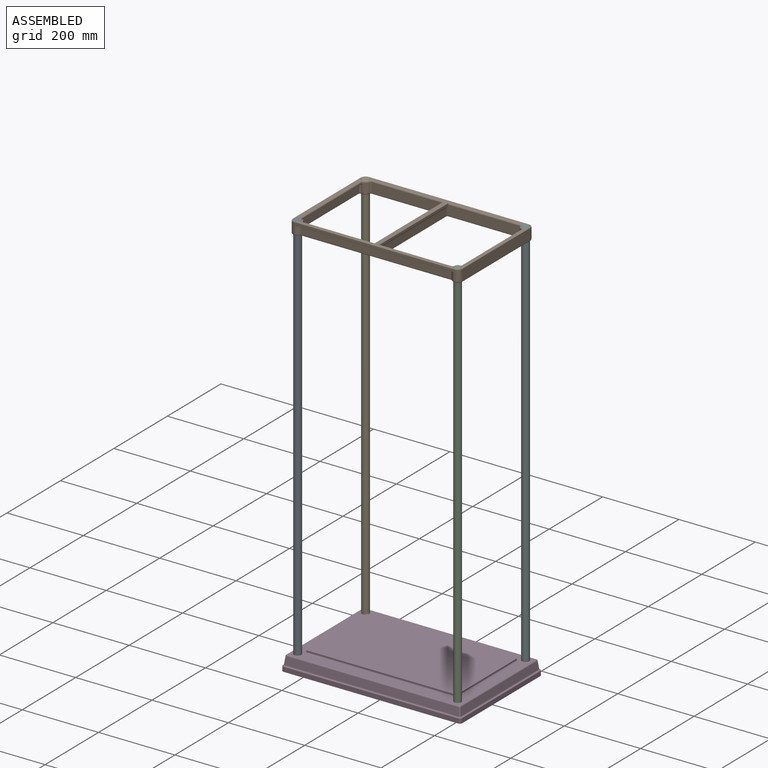
[diagram: assembled view]
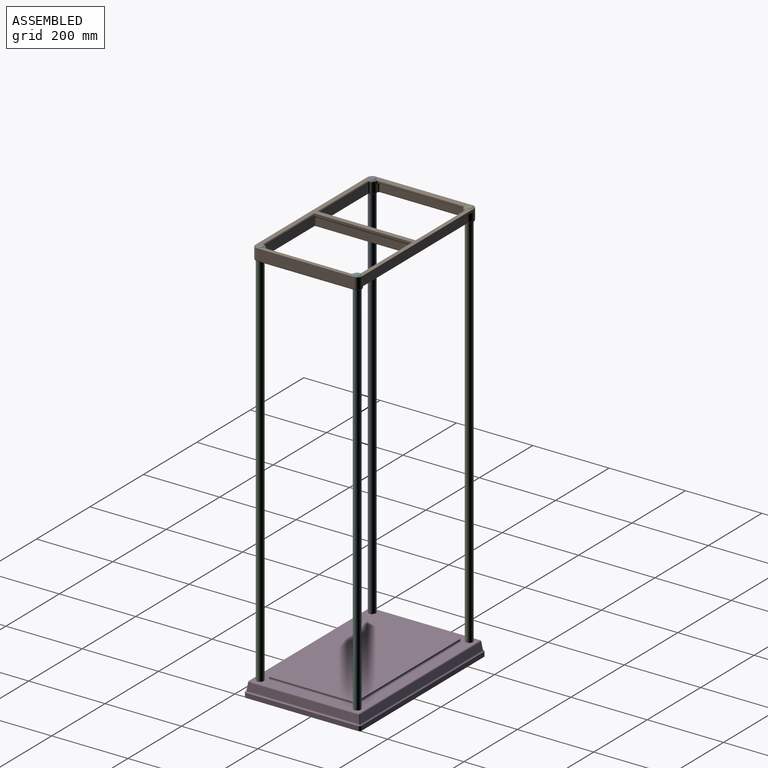
[diagram: assembled view, second angle]
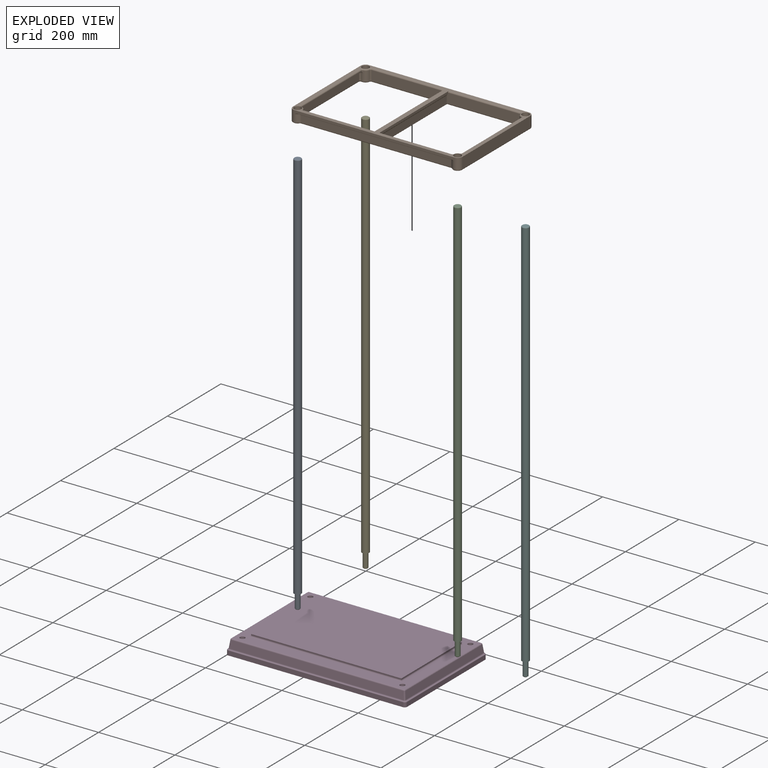
[diagram: exploded view]
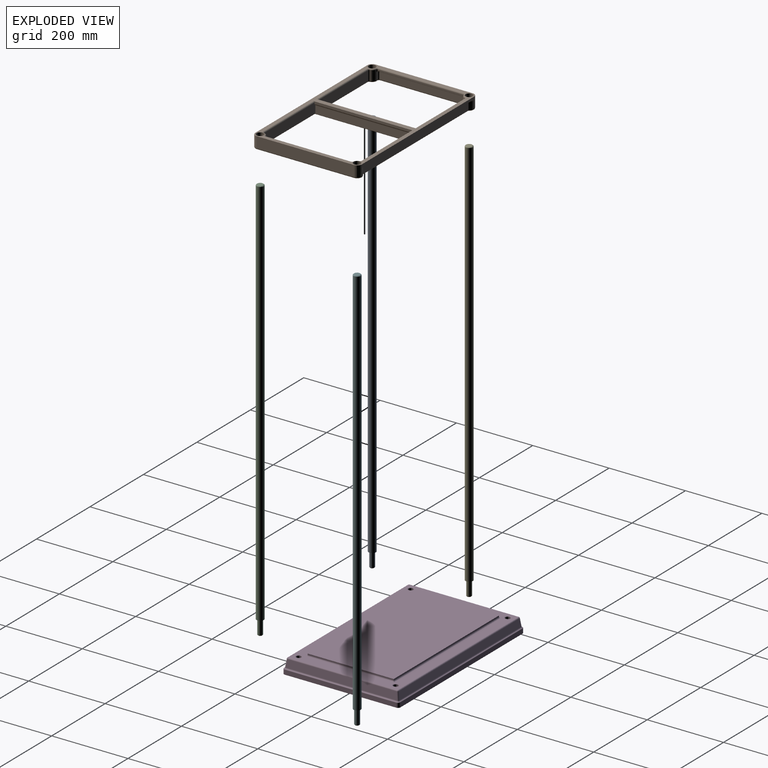
[diagram: exploded view, second angle]
ASSEMBLY  parts=6 mates=6
PART A: 7 faces, bbox 19.1x19.1x1066.8 mm
  f0: plane 9.65x9.65mm, normal (0,0,-1), area 73.2mm2, adj f6
  f1: cylinder r=6.35mm len=36.58mm, axis (0,0,-1), area 1459.3mm2, adj f2,f6
  f2: plane 19.05x19.05mm, normal (0,0,-1), area 158.3mm2, adj f1,f3
  f3: cylinder r=9.53mm len=1027.18mm, axis (0,0,-1), area 61473.8mm2, adj f2,f5
  f4: plane 16x16mm, normal (0,0,1), area 201.1mm2, adj f5
  f5: cone r=9.53mm half-angle=45deg, axis (0,0,-1), area 118.7mm2, adj f3,f4
  f6: cone r=4.83mm half-angle=45deg, axis (0,0,1), area 75.7mm2, adj f0,f1
PART B: 126 faces, bbox 446.6x293.2x31.8 mm
  f0: plane 15.55x7.62mm, normal (0,0,1), area 25.6mm2, adj f43,f78,f79
  f1: plane 15.55x7.62mm, normal (0,0,1), area 25.6mm2, adj f42,f79,f87
  f2: plane 15.55x7.62mm, normal (0,0,1), area 25.6mm2, adj f41,f63,f64
  f3: plane 15.55x7.62mm, normal (0,0,1), area 25.6mm2, adj f40,f64,f99
  f4: plane 6.57x5.08mm, normal (0,0,1), area 7.7mm2, adj f42,f56,f91
  f5: plane 260.35x3.3mm, normal (0,0,1), area 859.7mm2, adj f56,f71,f124,f125
  f6: plane 7.93x7.62mm, normal (0,0,1), area 9.6mm2, adj f40,f71,f103,f109
  f7: plane 6.57x5.08mm, normal (0,0,1), area 7.7mm2, adj f41,f56,f59
  f8: plane 444.5x279.4mm, normal (0,0,-1), area 16079.3mm2, adj f15,f18,f19,f20,f21,f22,f23,f24
  f9: plane 7.93x7.62mm, normal (0,0,1), area 9.6mm2, adj f43,f71,f74,f112
  f10: plane 222.35x1.27mm, normal (0,0,1), area 282.3mm2, adj f32,f46,f58,f92
  f11: plane 222.35x1.27mm, normal (0,0,1), area 282.3mm2, adj f27,f44,f73,f80
  f12: plane 400.05x1.27mm, normal (0,0,1), area 506.1mm2, adj f19,f45,f119,f123
  f13: cylinder r=12.7mm len=25.4mm, axis (0,0,-1), area 473.6mm2, adj f52,f55,f57,f58,f60,f61,f62
  f14: plane 190.82x25.4mm, normal (0,-1,0), area 4832.6mm2, adj f15,f38,f49,f51,f56,f57
  f15: plane 260.35x6.35mm, normal (-1,0,0), area 1617.2mm2, adj f8,f14,f16,f49,f51,f98
  f16: plane 190.82x25.4mm, normal (0,1,0), area 4832.6mm2, adj f15,f38,f49,f71,f98,f102
  f17: cylinder r=12.7mm len=25.4mm, axis (0,0,-1), area 473.6mm2, adj f92,f93,f94,f96,f97,f101,f102
  f18: cylinder r=12.7mm len=28.58mm, axis (0,0,-1), area 793.6mm2, adj f8,f19,f30,f115,f121,f122,f123
  f19: plane 419.1x9.53mm, normal (0,1,0), area 2684mm2, adj f8,f12,f18,f20,f119,f123
  f20: cylinder r=12.7mm len=28.58mm, axis (0,0,-1), area 793.6mm2, adj f8,f19,f21,f114,f117,f118,f119
  f21: plane 254x28.58mm, normal (-1,0,0), area 7258.1mm2, adj f8,f20,f22,f64
  f22: cylinder r=12.7mm len=28.58mm, axis (0,0,-1), area 793.6mm2, adj f8,f21,f23,f104,f105,f107,f111
  f23: plane 419.1x9.53mm, normal (0,-1,0), area 2684mm2, adj f8,f22,f24,f33,f104,f106
  f24: cylinder r=12.7mm len=28.58mm, axis (0,0,-1), area 793.6mm2, adj f8,f23,f30,f106,f108,f110,f113
  f25: plane 190.82x25.4mm, normal (0,-1,0), area 4832.6mm2, adj f31,f36,f48,f56,f86,f90
  f26: cylinder r=12.7mm len=25.4mm, axis (0,0,-1), area 473.6mm2, adj f80,f81,f82,f84,f85,f89,f90
  f27: plane 222.89x3.19mm, normal (-1,0,0), area 707.7mm2, adj f11,f65,f70,f73,f80,f81
  f28: cylinder r=12.7mm len=25.4mm, axis (0,0,-1), area 473.6mm2, adj f67,f70,f72,f73,f75,f76,f77
  f29: plane 190.82x25.4mm, normal (0,1,0), area 4832.6mm2, adj f31,f36,f48,f66,f71,f72
  f30: plane 254x28.58mm, normal (1,0,0), area 7258.1mm2, adj f8,f18,f24,f79
  f31: plane 260.35x6.35mm, normal (1,0,0), area 1617.2mm2, adj f8,f25,f29,f48,f66,f86
  f32: plane 222.89x3.19mm, normal (1,0,0), area 707.7mm2, adj f10,f50,f55,f58,f92,f93
  f33: plane 400.05x1.27mm, normal (0,0,1), area 506.1mm2, adj f23,f47,f104,f106
  f34: plane 393.7x17.15mm, normal (0,-1,0), area 6750mm2, adj f47,f71,f107,f110
  f35: plane 393.7x17.15mm, normal (0,1,0), area 6750mm2, adj f45,f56,f117,f121
  f36: plane 254.93x19.17mm, normal (1,0,0), area 4868.8mm2, adj f25,f29,f48,f56,f71,f124
  f37: plane 222.89x17.15mm, normal (-1,0,0), area 3821.5mm2, adj f44,f77,f79,f84
  f38: plane 254.93x19.17mm, normal (-1,0,0), area 4868.8mm2, adj f14,f16,f49,f56,f71,f125
  f39: plane 222.89x17.15mm, normal (1,0,0), area 3821.5mm2, adj f46,f62,f64,f96
  f40: cylinder r=9.53mm len=31.75mm, axis (0,0,-1), area 1900.2mm2, adj f3,f6,f8,f97,f101,f111
  f41: cylinder r=9.53mm len=31.75mm, axis (0,0,-1), area 1900.2mm2, adj f2,f7,f8,f52,f61,f114
  f42: cylinder r=9.53mm len=31.75mm, axis (0,0,-1), area 1900.2mm2, adj f1,f4,f8,f85,f89,f115
  f43: cylinder r=9.53mm len=31.75mm, axis (0,0,-1), area 1900.2mm2, adj f0,f8,f9,f67,f76,f113
  f44: cylinder r=5.08mm len=222.89mm, axis (0,-1,0), area 1776.4mm2, adj f11,f37,f75,f82
  f45: cylinder r=5.08mm len=397.07mm, axis (-1,0,0), area 3150.8mm2, adj f12,f35,f118,f122
  f46: cylinder r=5.08mm len=222.89mm, axis (0,1,0), area 1776.4mm2, adj f10,f39,f60,f94
  f47: cylinder r=5.08mm len=397.07mm, axis (1,0,0), area 3150.8mm2, adj f33,f34,f105,f108
  f48: cylinder r=5.08mm len=254mm, axis (0,1,0), area 1530.8mm2, adj f25,f29,f31,f36
  f49: cylinder r=5.08mm len=254mm, axis (0,-1,0), area 1530.8mm2, adj f14,f15,f16,f38
  f50: cylinder r=3.17mm len=222.89mm, axis (0,1,0), area 1111.6mm2, adj f8,f32,f53,f95
  f51: cylinder r=3.17mm len=187.65mm, axis (1,0,0), area 935.8mm2, adj f8,f14,f15,f54
  f52: torus R=9.53mm, axis (0,0,1), area 67.3mm2, adj f13,f41,f53,f54
  f53: torus R=6.35mm, axis (0,0,1), area 29.6mm2, adj f8,f50,f52,f55
  f54: torus R=6.35mm, axis (0,0,1), area 29.6mm2, adj f8,f51,f52,f57
  f55: cylinder r=3.17mm len=6.35mm, axis (0,0,-1), area 19mm2, adj f13,f32,f53,f58
  f56: cylinder r=3.17mm len=401.14mm, axis (-1,0,0), area 3883.2mm2, adj f4,f5,f7,f14,f25,f35,f36,f38
  f57: cylinder r=3.17mm len=25.4mm, axis (0,0,-1), area 110.4mm2, adj f13,f14,f54,f59
  f58: torus R=15.88mm, axis (0,0,1), area 9.9mm2, adj f10,f13,f32,f55,f60
  f59: torus R=6.35mm, axis (0,0,1), area 29.6mm2, adj f7,f56,f57,f61
  f60: bspline ~6.38x6.37mm, area 32.7mm2, adj f13,f46,f58,f62
  f61: torus R=9.53mm, axis (0,0,1), area 90.5mm2, adj f13,f41,f59,f63
  f62: cylinder r=3.17mm len=17.15mm, axis (0,0,-1), area 96.5mm2, adj f13,f39,f60,f63
  f63: torus R=6.35mm, axis (0,0,1), area 38.3mm2, adj f2,f61,f62,f64
  f64: cylinder r=3.17mm len=254mm, axis (0,-1,0), area 2378.4mm2, adj f2,f3,f21,f39,f63,f99,f111,f114
  f65: cylinder r=3.17mm len=222.89mm, axis (0,-1,0), area 1111.6mm2, adj f8,f27,f68,f83
  f66: cylinder r=3.17mm len=187.65mm, axis (-1,0,0), area 935.8mm2, adj f8,f29,f31,f69
  f67: torus R=9.53mm, axis (0,0,1), area 67.3mm2, adj f28,f43,f68,f69
  f68: torus R=6.35mm, axis (0,0,1), area 29.6mm2, adj f8,f65,f67,f70
  f69: torus R=6.35mm, axis (0,0,1), area 29.6mm2, adj f8,f66,f67,f72
  f70: cylinder r=3.17mm len=6.35mm, axis (0,0,-1), area 19mm2, adj f27,f28,f68,f73
  f71: cylinder r=3.17mm len=393.7mm, axis (1,0,0), area 3870.6mm2, adj f5,f6,f9,f16,f29,f34,f36,f38
  f72: cylinder r=3.17mm len=25.4mm, axis (0,0,-1), area 110.4mm2, adj f28,f29,f69,f74
  f73: torus R=15.88mm, axis (0,0,1), area 9.9mm2, adj f11,f27,f28,f70,f75
  f74: torus R=6.35mm, axis (0,0,1), area 29.6mm2, adj f9,f71,f72,f76
  f75: bspline ~6.38x6.37mm, area 32.7mm2, adj f28,f44,f73,f77
  f76: torus R=9.53mm, axis (0,0,1), area 90.5mm2, adj f28,f43,f74,f78
  f77: cylinder r=3.17mm len=17.15mm, axis (0,0,-1), area 96.5mm2, adj f28,f37,f75,f78
  f78: torus R=6.35mm, axis (0,0,1), area 38.3mm2, adj f0,f76,f77,f79
  f79: cylinder r=3.17mm len=254mm, axis (0,1,0), area 2378.4mm2, adj f0,f1,f30,f37,f78,f87,f113,f115
  f80: torus R=15.88mm, axis (0,0,1), area 9.9mm2, adj f11,f26,f27,f81,f82
  f81: cylinder r=3.17mm len=6.35mm, axis (0,0,-1), area 19mm2, adj f26,f27,f80,f83
  f82: bspline ~6.38x6.37mm, area 32.7mm2, adj f26,f44,f80,f84
  f83: torus R=6.35mm, axis (0,0,1), area 29.6mm2, adj f8,f65,f81,f85
  f84: cylinder r=3.17mm len=17.15mm, axis (0,0,-1), area 96.5mm2, adj f26,f37,f82,f87
  f85: torus R=9.53mm, axis (0,0,1), area 67.3mm2, adj f26,f42,f83,f88
  f86: cylinder r=3.17mm len=187.65mm, axis (1,0,0), area 935.8mm2, adj f8,f25,f31,f88
  f87: torus R=6.35mm, axis (0,0,1), area 38.3mm2, adj f1,f79,f84,f89
  f88: torus R=6.35mm, axis (0,0,1), area 29.6mm2, adj f8,f85,f86,f90
  f89: torus R=9.53mm, axis (0,0,1), area 90.5mm2, adj f26,f42,f87,f91
  f90: cylinder r=3.17mm len=25.4mm, axis (0,0,-1), area 110.4mm2, adj f25,f26,f88,f91
  f91: torus R=6.35mm, axis (0,0,1), area 29.6mm2, adj f4,f56,f89,f90
  f92: torus R=15.88mm, axis (0,0,1), area 9.9mm2, adj f10,f17,f32,f93,f94
  f93: cylinder r=3.17mm len=6.35mm, axis (0,0,-1), area 19mm2, adj f17,f32,f92,f95
  f94: bspline ~6.38x6.37mm, area 32.7mm2, adj f17,f46,f92,f96
  f95: torus R=6.35mm, axis (0,0,1), area 29.6mm2, adj f8,f50,f93,f97
  f96: cylinder r=3.17mm len=17.15mm, axis (0,0,-1), area 96.5mm2, adj f17,f39,f94,f99
  f97: torus R=9.53mm, axis (0,0,1), area 67.3mm2, adj f17,f40,f95,f100
  f98: cylinder r=3.17mm len=187.65mm, axis (-1,0,0), area 935.8mm2, adj f8,f15,f16,f100
  f99: torus R=6.35mm, axis (0,0,1), area 38.3mm2, adj f3,f64,f96,f101
  f100: torus R=6.35mm, axis (0,0,1), area 29.6mm2, adj f8,f97,f98,f102
  f101: torus R=9.53mm, axis (0,0,1), area 90.5mm2, adj f17,f40,f99,f103
  f102: cylinder r=3.17mm len=25.4mm, axis (0,0,-1), area 110.4mm2, adj f16,f17,f100,f103
  f103: torus R=6.35mm, axis (0,0,1), area 29.6mm2, adj f6,f71,f101,f102
  f104: torus R=15.88mm, axis (0,0,1), area 27.6mm2, adj f22,f23,f33,f105
  f105: bspline ~6.72x6.69mm, area 20.9mm2, adj f22,f47,f104,f107
  f106: torus R=15.88mm, axis (0,0,1), area 27.6mm2, adj f23,f24,f33,f108
  f107: cylinder r=3.17mm len=17.15mm, axis (0,0,-1), area 50.5mm2, adj f22,f34,f105,f109
  f108: bspline ~6.72x6.69mm, area 20.9mm2, adj f24,f47,f106,f110
  f109: torus R=6.35mm, axis (0,0,1), area 20mm2, adj f6,f71,f107,f111
  f110: cylinder r=3.17mm len=17.15mm, axis (0,0,-1), area 50.5mm2, adj f24,f34,f108,f112
  f111: torus R=9.53mm, axis (0,0,1), area 143.9mm2, adj f22,f40,f64,f109
  f112: torus R=6.35mm, axis (0,0,1), area 20mm2, adj f9,f71,f110,f113
  f113: torus R=9.53mm, axis (0,0,1), area 143.9mm2, adj f24,f43,f79,f112
  f114: torus R=9.53mm, axis (0,0,1), area 148.8mm2, adj f20,f41,f64,f116
  f115: torus R=9.53mm, axis (0,0,1), area 148.8mm2, adj f18,f42,f79,f120
  f116: bspline ~4.45x3.83mm, area 10.6mm2, adj f56,f114,f117
  f117: cylinder r=3.17mm len=17.15mm, axis (0,0,-1), area 50.5mm2, adj f20,f35,f116,f118
  f118: bspline ~6.72x6.69mm, area 20.9mm2, adj f20,f45,f117,f119
  f119: torus R=15.88mm, axis (0,0,1), area 27.6mm2, adj f12,f19,f20,f118
  f120: bspline ~4.45x3.72mm, area 10.6mm2, adj f56,f115,f121
  f121: cylinder r=3.17mm len=17.15mm, axis (0,0,-1), area 50.5mm2, adj f18,f35,f120,f122
  f122: bspline ~6.72x6.69mm, area 20.9mm2, adj f18,f45,f121,f123
  f123: torus R=15.88mm, axis (0,0,1), area 27.6mm2, adj f12,f18,f19,f122
  f124: cylinder r=1.52mm len=260.35mm, axis (0,-1,0), area 615.9mm2, adj f5,f36,f56,f71
  f125: cylinder r=1.52mm len=260.35mm, axis (0,1,0), area 615.9mm2, adj f5,f38,f56,f71
PART C: same geometry as A
PART D: 84 faces, bbox 470x304.9x44.5 mm
  f0: plane 469.9x304.8mm, normal (0,0,-1), area 39093.1mm2, adj f4,f5,f6,f7,f11,f12,f13,f14
  f1: plane 451.59x286.58mm, normal (0,0,1), area 36012.4mm2, adj f20,f22,f24,f26,f27,f30,f34,f35
  f2: plane 456.58x19.93mm, normal (0,0.99,0.14), area 9140.5mm2, adj f27,f31,f32,f33
  f3: plane 456.58x19.93mm, normal (0,-0.99,0.14), area 9140.5mm2, adj f35,f40,f43,f46
  f4: plane 292.1x11.52mm, normal (1,0,0), area 3365.5mm2, adj f0,f49,f50,f60
  f5: plane 292.1x11.52mm, normal (-1,0,0), area 3365.5mm2, adj f0,f47,f48,f57
  f6: plane 457.2x11.61mm, normal (0,1,0), area 5307.7mm2, adj f0,f48,f50,f51,f52,f54
  f7: plane 457.2x11.61mm, normal (0,-1,0), area 5307.7mm2, adj f0,f47,f49,f63,f65,f66
  f8: plane 292.16x19.84mm, normal (0.99,0,0.12), area 5785mm2, adj f30,f31,f40,f41
  f9: plane 292.16x19.84mm, normal (-0.99,0,0.12), area 5785mm2, adj f33,f34,f42,f43
  f10: plane 386.76x222.29mm, normal (0,0,-1), area 85667.3mm2, adj f67,f68,f69,f70,f71,f72,f73,f74
  f11: plane 381.53x14.5mm, normal (0,-0.99,-0.14), area 5570.3mm2, adj f0,f16,f17,f67,f68,f70
  f12: plane 381.53x14.5mm, normal (0,0.99,-0.14), area 5570.3mm2, adj f0,f15,f18,f71,f73,f74
  f13: plane 216.55x14.31mm, normal (-0.99,0,-0.12), area 3111.6mm2, adj f0,f17,f18,f70,f72,f74
  f14: plane 216.55x14.31mm, normal (0.99,0,-0.12), area 3111.6mm2, adj f0,f15,f16,f67,f69,f71
  f15: cylinder r=19.05mm len=17.72mm, axis (0,0,1), area 319.9mm2, adj f0,f12,f14,f71
  f16: cylinder r=19.05mm len=17.72mm, axis (0,0,1), area 319.9mm2, adj f0,f11,f14,f67
  f17: cylinder r=19.05mm len=17.72mm, axis (0,0,1), area 319.9mm2, adj f0,f11,f13,f70
  f18: cylinder r=19.05mm len=17.72mm, axis (0,0,1), area 319.9mm2, adj f0,f12,f13,f74
  f19: cylinder r=6.35mm len=37.47mm, axis (0,0,1), area 1494.8mm2, adj f0,f20
  f20: cone r=6.35mm half-angle=45deg, axis (0,0,1), area 37.6mm2, adj f1,f19
  f21: cylinder r=6.35mm len=37.47mm, axis (0,0,1), area 1494.8mm2, adj f0,f22
  f22: cone r=6.35mm half-angle=45deg, axis (0,0,1), area 37.6mm2, adj f1,f21
  f23: cylinder r=6.35mm len=37.47mm, axis (0,0,1), area 1494.8mm2, adj f0,f24
  f24: cone r=6.35mm half-angle=45deg, axis (0,0,1), area 37.6mm2, adj f1,f23
  f25: cylinder r=6.35mm len=37.47mm, axis (0,0,1), area 1494.8mm2, adj f0,f26
  f26: cone r=6.35mm half-angle=45deg, axis (0,0,1), area 37.6mm2, adj f1,f25
  f27: cylinder r=3.17mm len=451.59mm, axis (-1,0,0), area 2052mm2, adj f1,f2,f28,f29
  f28: sphere r=3.17mm, area 18.1mm2, adj f27,f30,f31
  f29: sphere r=3.17mm, area 23.6mm2, adj f27,f33,f34
  f30: cylinder r=3.17mm len=286.58mm, axis (0,-1,0), area 1316.1mm2, adj f1,f8,f28,f36
  f31: cylinder r=3.17mm len=20.13mm, axis (0.12,0.14,-0.98), area 99.8mm2, adj f2,f8,f28,f37
  f32: cylinder r=3.17mm len=456.58mm, axis (1,0,0), area 1661.7mm2, adj f2,f37,f38,f52
  f33: cylinder r=3.17mm len=20.13mm, axis (0.12,-0.14,0.98), area 99.8mm2, adj f2,f9,f29,f38
  f34: cylinder r=3.17mm len=286.58mm, axis (0,1,0), area 1316.1mm2, adj f1,f9,f29,f39
  f35: cylinder r=3.17mm len=451.59mm, axis (-1,0,0), area 2052mm2, adj f1,f3,f36,f39
  f36: sphere r=3.17mm, area 13.2mm2, adj f30,f35,f40
  f37: bspline ~5.67x5.65mm, area 23.8mm2, adj f31,f32,f41,f54,f56
  f38: bspline ~7.11x7mm, area 23.8mm2, adj f32,f33,f42,f51,f53
  f39: sphere r=3.17mm, area 13.8mm2, adj f34,f35,f43
  f40: cylinder r=3.17mm len=20.13mm, axis (-0.12,0.14,0.98), area 99.8mm2, adj f3,f8,f36,f44
  f41: cylinder r=3.17mm len=292.16mm, axis (0,1,0), area 1153mm2, adj f8,f37,f44,f58,f60,f62
  f42: cylinder r=3.17mm len=292.16mm, axis (0,-1,0), area 1153mm2, adj f9,f38,f45,f55,f57,f59
  f43: cylinder r=3.17mm len=20.13mm, axis (-0.12,-0.14,-0.98), area 99.8mm2, adj f3,f9,f39,f45
  f44: bspline ~7.11x7mm, area 23.8mm2, adj f40,f41,f46,f64,f66
  f45: bspline ~5.67x5.65mm, area 23.8mm2, adj f42,f43,f46,f61,f63
  f46: cylinder r=3.17mm len=456.58mm, axis (1,0,0), area 1661.7mm2, adj f3,f44,f45,f65
  f47: cylinder r=6.35mm len=11.61mm, axis (0,0,-1), area 115.3mm2, adj f0,f5,f7,f59,f61
  f48: cylinder r=6.35mm len=11.61mm, axis (0,0,1), area 115.3mm2, adj f0,f5,f6,f53,f55
  f49: cylinder r=6.35mm len=11.61mm, axis (0,0,1), area 115.3mm2, adj f0,f4,f7,f62,f64
  f50: cylinder r=6.35mm len=11.61mm, axis (0,0,-1), area 115.3mm2, adj f0,f4,f6,f56,f58
  f51: bspline ~1.66x1.24mm, area 0.5mm2, adj f6,f38,f52,f53
  f52: cylinder r=1.27mm len=456.58mm, axis (1,0,0), area 745.6mm2, adj f6,f32,f51,f54
  f53: bspline ~7.11x7.06mm, area 15.9mm2, adj f38,f48,f51,f55
  f54: bspline ~1.66x1.24mm, area 0.5mm2, adj f6,f37,f52,f56
  f55: bspline ~1.24x1.01mm, area 0.1mm2, adj f42,f48,f53,f57
  f56: bspline ~7.11x7.06mm, area 15.9mm2, adj f37,f50,f54,f58
  f57: cylinder r=1.27mm len=292.1mm, axis (0,-1,0), area 507.3mm2, adj f5,f42,f55,f59
  f58: bspline ~1.24x1.01mm, area 0.1mm2, adj f41,f50,f56,f60
  f59: bspline ~1.24x1.01mm, area 0.1mm2, adj f42,f47,f57,f61
  f60: cylinder r=1.27mm len=292.1mm, axis (0,1,0), area 507.3mm2, adj f4,f41,f58,f62
  f61: bspline ~7.11x7.06mm, area 15.9mm2, adj f45,f47,f59,f63
  f62: bspline ~1.24x1.01mm, area 0.1mm2, adj f41,f49,f60,f64
  f63: bspline ~1.66x1.24mm, area 0.5mm2, adj f7,f45,f61,f65
  f64: bspline ~7.11x7.06mm, area 15.9mm2, adj f44,f49,f62,f66
  f65: cylinder r=1.27mm len=456.58mm, axis (1,0,0), area 745.6mm2, adj f7,f46,f63,f66
  f66: bspline ~1.23x1.16mm, area 0.5mm2, adj f7,f44,f64,f65
  f67: torus R=31.75mm, axis (0,0,1), area 404.8mm2, adj f10,f11,f14,f16,f68,f69
  f68: cylinder r=12.7mm len=381.32mm, axis (1,0,0), area 6774.2mm2, adj f10,f11,f67,f70
  f69: cylinder r=12.7mm len=216.38mm, axis (0,-1,0), area 3818.4mm2, adj f10,f14,f67,f71
  f70: torus R=31.75mm, axis (0,0,1), area 404.8mm2, adj f10,f11,f13,f17,f68,f72
  f71: torus R=31.75mm, axis (0,0,1), area 404.8mm2, adj f10,f12,f14,f15,f69,f73
  f72: cylinder r=12.7mm len=216.38mm, axis (0,1,0), area 3818.4mm2, adj f10,f13,f70,f74
  f73: cylinder r=12.7mm len=381.32mm, axis (1,0,0), area 6774.2mm2, adj f10,f12,f71,f74
  f74: torus R=31.75mm, axis (0,0,1), area 404.8mm2, adj f10,f12,f13,f18,f72,f73
  f75: plane 393.7x3.18mm, normal (0,-1,0), area 1250mm2, adj f76,f78,f79,f80
  f76: plane 225.6x3.18mm, normal (1,0,0), area 716.3mm2, adj f75,f77,f79,f81
  f77: plane 393.7x3.18mm, normal (0,1,0), area 1250mm2, adj f76,f78,f79,f83
  f78: plane 225.6x3.18mm, normal (-1,0,0), area 716.3mm2, adj f75,f77,f79,f82
  f79: plane 393.7x225.6mm, normal (0,0,1), area 88819.5mm2, adj f75,f76,f77,f78
  f80: cylinder r=3.17mm len=400.05mm, axis (1,0,0), area 1979.3mm2, adj f1,f75,f81,f82
  f81: cylinder r=3.17mm len=231.95mm, axis (0,1,0), area 1141mm2, adj f1,f76,f80,f83
  f82: cylinder r=3.17mm len=231.95mm, axis (0,-1,0), area 1141mm2, adj f1,f78,f80,f83
  f83: cylinder r=3.17mm len=400.05mm, axis (-1,0,0), area 1979.3mm2, adj f1,f77,f81,f82
PART E: same geometry as A
PART F: same geometry as A
PLACE A t=(-209.55,-127,0)mm
PLACE B rot(axis=(1,0,0),180deg) t=(0,0,1065.28)mm
PLACE C t=(209.55,-127,0)mm
PLACE D at identity fixed
PLACE E t=(-209.55,127,0)mm
PLACE F rot(axis=(0,0,1),0deg) t=(209.55,127,0)mm
MATE cylindrical B.f24 <-> F.f1  axis (0,0,1) through (209.55,127,1065.28)mm
MATE cylindrical A.f1 <-> D.f15  axis (0,0,-1) through (-209.55,-127,38.1)mm
MATE cylindrical E.f1 <-> D.f16  axis (0,0,-1) through (-209.55,127,38.1)mm
MATE cylindrical B.f13 <-> A.f1  axis (0,0,1) through (-209.55,-127,1065.28)mm
MATE cylindrical C.f1 <-> D.f18  axis (0,0,-1) through (209.55,-127,38.1)mm
MATE cylindrical F.f1 <-> D.f17  axis (0,0,-1) through (209.55,127,38.1)mm
